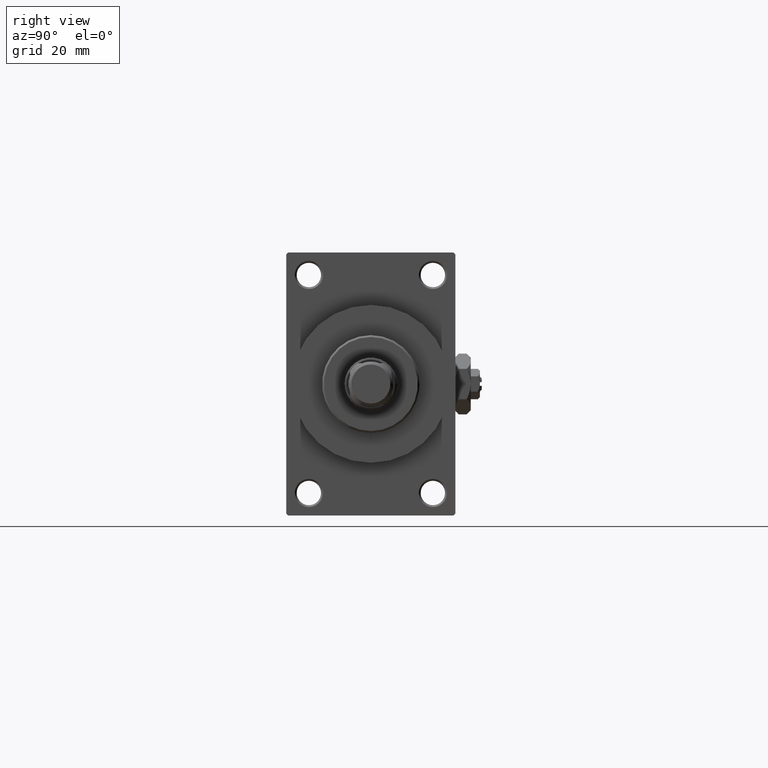
[diagram: clean part render]
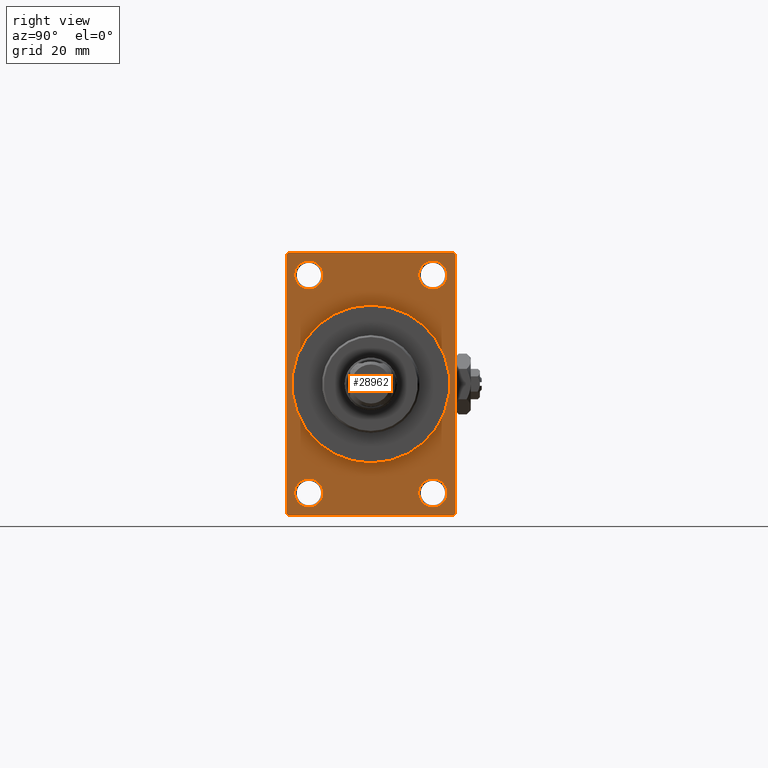
[diagram: same view with one face highlighted and labeled with its STEP entity id]
A machine part, right view. The second image highlights one B-rep face of the part: STEP entity #28962.
In plain terms, the highlighted planar face has unit normal (-1, 0, 0).
Its self-contained STEP definition (entity closure, byte-faithful):
#120 = CARTESIAN_POINT ( 'NONE',  ( 113.0000000000000142, -22.50000000000000355, 35.00000000000000000 ) ) ;
#156 = CIRCLE ( 'NONE', #8189, 3.750000000000076383 ) ;
#503 = EDGE_CURVE ( 'NONE', #49047, #524, #26701, .T. ) ;
#524 = VERTEX_POINT ( 'NONE', #32859 ) ;
#544 = VERTEX_POINT ( 'NONE', #9822 ) ;
#860 = VECTOR ( 'NONE', #10051, 1000.000000000000000 ) ;
#960 = EDGE_CURVE ( 'NONE', #15531, #18504, #10149, .T. ) ;
#1270 = DIRECTION ( 'NONE',  ( -1.000000000000000000, -0.000000000000000000, -0.000000000000000000 ) ) ;
#1417 = CIRCLE ( 'NONE', #33437, 3.750000000000076383 ) ;
#1958 = CARTESIAN_POINT ( 'NONE',  ( 113.0000000000000142, 16.50000000000000000, 29.00000000000000355 ) ) ;
#2892 = DIRECTION ( 'NONE',  ( 0.000000000000000000, 0.000000000000000000, -1.000000000000000000 ) ) ;
#3940 = EDGE_CURVE ( 'NONE', #40614, #14193, #1417, .T. ) ;
#4232 = CARTESIAN_POINT ( 'NONE',  ( 113.0000000000000142, 0.000000000000000000, 21.00000000000000000 ) ) ;
#4236 = DIRECTION ( 'NONE',  ( 1.000000000000000000, 0.000000000000000000, 0.000000000000000000 ) ) ;
#4344 = AXIS2_PLACEMENT_3D ( 'NONE', #38659, #46430, #28119 ) ;
#4478 = CARTESIAN_POINT ( 'NONE',  ( 113.0000000000000142, 0.000000000000000000, 0.000000000000000000 ) ) ;
#4503 = CIRCLE ( 'NONE', #48559, 3.750000000000069278 ) ;
#5061 = CARTESIAN_POINT ( 'NONE',  ( 113.0000000000000142, -21.99999999999997513, -35.00000000000000000 ) ) ;
#5621 = FACE_BOUND ( 'NONE', #34320, .T. ) ;
#5666 = CARTESIAN_POINT ( 'NONE',  ( 113.0000000000000142, 0.000000000000000000, 0.000000000000000000 ) ) ;
#5853 = VECTOR ( 'NONE', #37655, 1000.000000000000000 ) ;
#5872 = CARTESIAN_POINT ( 'NONE',  ( 113.0000000000000142, 0.000000000000000000, 0.000000000000000000 ) ) ;
#6009 = ORIENTED_EDGE ( 'NONE', *, *, #42735, .F. ) ;
#6300 = VECTOR ( 'NONE', #6493, 1000.000000000000114 ) ;
#6372 = DIRECTION ( 'NONE',  ( -0.000000000000000000, 0.000000000000000000, 1.000000000000000000 ) ) ;
#6443 = EDGE_CURVE ( 'NONE', #544, #41608, #22269, .T. ) ;
#6493 = DIRECTION ( 'NONE',  ( -0.000000000000000000, 0.7071067811865474617, 0.7071067811865474617 ) ) ;
#6505 = DIRECTION ( 'NONE',  ( 0.000000000000000000, -0.7071067811865474617, 0.7071067811865474617 ) ) ;
#7076 = CARTESIAN_POINT ( 'NONE',  ( 113.0000000000000142, -16.50000000000000000, 25.24999999999993960 ) ) ;
#7233 = CARTESIAN_POINT ( 'NONE',  ( 113.0000000000000142, 22.49999999999999645, 35.00000000000000000 ) ) ;
#7350 = ORIENTED_EDGE ( 'NONE', *, *, #19491, .T. ) ;
#7553 = EDGE_CURVE ( 'NONE', #8559, #41608, #10252, .T. ) ;
#8189 = AXIS2_PLACEMENT_3D ( 'NONE', #8244, #23524, #19770 ) ;
#8208 = CARTESIAN_POINT ( 'NONE',  ( 113.0000000000000142, 16.50000000000000000, 32.75000000000007816 ) ) ;
#8244 = CARTESIAN_POINT ( 'NONE',  ( 113.0000000000000142, -16.50000000000000000, -28.99999999999999289 ) ) ;
#8559 = VERTEX_POINT ( 'NONE', #9952 ) ;
#8707 = DIRECTION ( 'NONE',  ( -1.000000000000000000, -0.000000000000000000, -0.000000000000000000 ) ) ;
#8819 = CIRCLE ( 'NONE', #39212, 3.750000000000072831 ) ;
#8851 = VERTEX_POINT ( 'NONE', #13919 ) ;
#8899 = CARTESIAN_POINT ( 'NONE',  ( 113.0000000000000142, -16.50000000000000000, -32.75000000000007105 ) ) ;
#8944 = CARTESIAN_POINT ( 'NONE',  ( 113.0000000000000142, -16.50000000000000000, -25.24999999999992184 ) ) ;
#9403 = CARTESIAN_POINT ( 'NONE',  ( 113.0000000000000142, 2.571758278209441661E-15, -21.00000000000000000 ) ) ;
#9420 = EDGE_LOOP ( 'NONE', ( #41730, #11751 ) ) ;
#9634 = FACE_OUTER_BOUND ( 'NONE', #22989, .T. ) ;
#9822 = CARTESIAN_POINT ( 'NONE',  ( 113.0000000000000142, 21.99999999999999645, -35.00000000000000000 ) ) ;
#9929 = ORIENTED_EDGE ( 'NONE', *, *, #3940, .T. ) ;
#9952 = CARTESIAN_POINT ( 'NONE',  ( 113.0000000000000142, 22.49999999999999645, 34.50000000000000000 ) ) ;
#10051 = DIRECTION ( 'NONE',  ( 0.000000000000000000, -1.000000000000000000, 0.000000000000000000 ) ) ;
#10149 = CIRCLE ( 'NONE', #47784, 3.750000000000076383 ) ;
#10231 = VERTEX_POINT ( 'NONE', #7076 ) ;
#10252 = LINE ( 'NONE', #7233, #30338 ) ;
#10732 = EDGE_CURVE ( 'NONE', #19738, #13387, #44858, .T. ) ;
#11556 = CIRCLE ( 'NONE', #4344, 3.750000000000069278 ) ;
#11751 = ORIENTED_EDGE ( 'NONE', *, *, #25648, .T. ) ;
#11969 = CARTESIAN_POINT ( 'NONE',  ( 113.0000000000000142, -16.50000000000000000, -28.99999999999999289 ) ) ;
#12454 = VERTEX_POINT ( 'NONE', #38735 ) ;
#13380 = VECTOR ( 'NONE', #30212, 1000.000000000000000 ) ;
#13387 = VERTEX_POINT ( 'NONE', #42197 ) ;
#13919 = CARTESIAN_POINT ( 'NONE',  ( 113.0000000000000142, -16.50000000000000000, 32.75000000000007816 ) ) ;
#14061 = ORIENTED_EDGE ( 'NONE', *, *, #960, .T. ) ;
#14193 = VERTEX_POINT ( 'NONE', #8899 ) ;
#15531 = VERTEX_POINT ( 'NONE', #16618 ) ;
#16618 = CARTESIAN_POINT ( 'NONE',  ( 113.0000000000000142, 16.50000000000000000, -32.75000000000007105 ) ) ;
#16963 = VERTEX_POINT ( 'NONE', #40646 ) ;
#16991 = LINE ( 'NONE', #29257, #24882 ) ;
#17385 = VERTEX_POINT ( 'NONE', #4232 ) ;
#17413 = FACE_BOUND ( 'NONE', #20206, .T. ) ;
#17434 = EDGE_CURVE ( 'NONE', #14193, #40614, #156, .T. ) ;
#17463 = ORIENTED_EDGE ( 'NONE', *, *, #39777, .T. ) ;
#17751 = DIRECTION ( 'NONE',  ( 0.000000000000000000, 0.7071067811865376918, -0.7071067811865574537 ) ) ;
#18073 = EDGE_LOOP ( 'NONE', ( #14061, #49487 ) ) ;
#18504 = VERTEX_POINT ( 'NONE', #47319 ) ;
#18771 = DIRECTION ( 'NONE',  ( 0.000000000000000000, 0.000000000000000000, -1.000000000000000000 ) ) ;
#19491 = EDGE_CURVE ( 'NONE', #12454, #16963, #34630, .T. ) ;
#19738 = VERTEX_POINT ( 'NONE', #8208 ) ;
#19770 = DIRECTION ( 'NONE',  ( 0.000000000000000000, 0.000000000000000000, 1.000000000000000000 ) ) ;
#19781 = AXIS2_PLACEMENT_3D ( 'NONE', #5872, #47973, #6372 ) ;
#20206 = EDGE_LOOP ( 'NONE', ( #20275, #6009 ) ) ;
#20275 = ORIENTED_EDGE ( 'NONE', *, *, #27743, .F. ) ;
#20511 = DIRECTION ( 'NONE',  ( 0.000000000000000000, 0.000000000000000000, -1.000000000000000000 ) ) ;
#20921 = FACE_BOUND ( 'NONE', #9420, .T. ) ;
#21172 = PLANE ( 'NONE',  #19781 ) ;
#21332 = LINE ( 'NONE', #36598, #860 ) ;
#22269 = LINE ( 'NONE', #40797, #6300 ) ;
#22989 = EDGE_LOOP ( 'NONE', ( #37139, #17463, #43242, #32108, #30753, #44566, #7350, #24741 ) ) ;
#23524 = DIRECTION ( 'NONE',  ( -1.000000000000000000, -0.000000000000000000, -0.000000000000000000 ) ) ;
#23735 = CARTESIAN_POINT ( 'NONE',  ( 113.0000000000000142, 16.50000000000000000, -28.99999999999999289 ) ) ;
#24741 = ORIENTED_EDGE ( 'NONE', *, *, #41444, .T. ) ;
#24882 = VECTOR ( 'NONE', #17751, 999.9999999999998863 ) ;
#25259 = EDGE_LOOP ( 'NONE', ( #33890, #9929 ) ) ;
#25312 = ORIENTED_EDGE ( 'NONE', *, *, #10732, .T. ) ;
#25648 = EDGE_CURVE ( 'NONE', #8851, #10231, #11556, .T. ) ;
#26115 = CIRCLE ( 'NONE', #45330, 21.00000000000000000 ) ;
#26530 = AXIS2_PLACEMENT_3D ( 'NONE', #5666, #37226, #2892 ) ;
#26701 = LINE ( 'NONE', #120, #13380 ) ;
#27243 = AXIS2_PLACEMENT_3D ( 'NONE', #38202, #1270, #45475 ) ;
#27321 = EDGE_CURVE ( 'NONE', #10231, #8851, #4503, .T. ) ;
#27337 = CIRCLE ( 'NONE', #26530, 21.00000000000000000 ) ;
#27743 = EDGE_CURVE ( 'NONE', #17385, #45240, #26115, .T. ) ;
#27854 = CARTESIAN_POINT ( 'NONE',  ( 113.0000000000000142, -22.50000000000000355, 34.50000000000000000 ) ) ;
#28119 = DIRECTION ( 'NONE',  ( 0.000000000000000000, 0.000000000000000000, 1.000000000000000000 ) ) ;
#28702 = EDGE_CURVE ( 'NONE', #8559, #12454, #33053, .T. ) ;
#28925 = VECTOR ( 'NONE', #43131, 1000.000000000000114 ) ;
#28962 = ADVANCED_FACE ( 'NONE', ( #20921, #32926, #35930, #5621, #17413, #9634 ), #21172, .F. ) ;
#29257 = CARTESIAN_POINT ( 'NONE',  ( 113.0000000000000142, -21.99999999999998934, -35.00000000000000000 ) ) ;
#29693 = CARTESIAN_POINT ( 'NONE',  ( 113.0000000000000142, -16.50000000000000000, 29.00000000000000711 ) ) ;
#30212 = DIRECTION ( 'NONE',  ( 0.000000000000000000, 0.000000000000000000, -1.000000000000000000 ) ) ;
#30338 = VECTOR ( 'NONE', #18771, 1000.000000000000000 ) ;
#30532 = ORIENTED_EDGE ( 'NONE', *, *, #38947, .T. ) ;
#30534 = DIRECTION ( 'NONE',  ( 0.000000000000000000, 0.000000000000000000, 1.000000000000000000 ) ) ;
#30753 = ORIENTED_EDGE ( 'NONE', *, *, #7553, .F. ) ;
#32020 = CIRCLE ( 'NONE', #27243, 3.750000000000076383 ) ;
#32108 = ORIENTED_EDGE ( 'NONE', *, *, #6443, .T. ) ;
#32859 = CARTESIAN_POINT ( 'NONE',  ( 113.0000000000000142, -22.50000000000000355, -34.49999999999997158 ) ) ;
#32926 = FACE_BOUND ( 'NONE', #25259, .T. ) ;
#33053 = LINE ( 'NONE', #48353, #40583 ) ;
#33437 = AXIS2_PLACEMENT_3D ( 'NONE', #11969, #42525, #43005 ) ;
#33654 = AXIS2_PLACEMENT_3D ( 'NONE', #33940, #48997, #38191 ) ;
#33890 = ORIENTED_EDGE ( 'NONE', *, *, #17434, .T. ) ;
#33891 = CARTESIAN_POINT ( 'NONE',  ( 113.0000000000000142, 22.49999999999999645, 35.00000000000000000 ) ) ;
#33940 = CARTESIAN_POINT ( 'NONE',  ( 113.0000000000000142, 16.50000000000000000, 29.00000000000000355 ) ) ;
#34320 = EDGE_LOOP ( 'NONE', ( #30532, #25312 ) ) ;
#34630 = LINE ( 'NONE', #33891, #5853 ) ;
#35930 = FACE_BOUND ( 'NONE', #18073, .T. ) ;
#36288 = DIRECTION ( 'NONE',  ( -1.000000000000000000, -0.000000000000000000, -0.000000000000000000 ) ) ;
#36598 = CARTESIAN_POINT ( 'NONE',  ( 113.0000000000000142, 22.49999999999999645, -35.00000000000000000 ) ) ;
#36617 = VERTEX_POINT ( 'NONE', #5061 ) ;
#36959 = DIRECTION ( 'NONE',  ( -1.000000000000000000, -0.000000000000000000, -0.000000000000000000 ) ) ;
#37139 = ORIENTED_EDGE ( 'NONE', *, *, #503, .T. ) ;
#37226 = DIRECTION ( 'NONE',  ( 1.000000000000000000, 0.000000000000000000, 0.000000000000000000 ) ) ;
#37655 = DIRECTION ( 'NONE',  ( 0.000000000000000000, -1.000000000000000000, 0.000000000000000000 ) ) ;
#38191 = DIRECTION ( 'NONE',  ( 0.000000000000000000, 0.000000000000000000, 1.000000000000000000 ) ) ;
#38202 = CARTESIAN_POINT ( 'NONE',  ( 113.0000000000000142, 16.50000000000000000, -28.99999999999999289 ) ) ;
#38659 = CARTESIAN_POINT ( 'NONE',  ( 113.0000000000000142, -16.50000000000000000, 29.00000000000000711 ) ) ;
#38735 = CARTESIAN_POINT ( 'NONE',  ( 113.0000000000000142, 21.99999999999999645, 35.00000000000000000 ) ) ;
#38947 = EDGE_CURVE ( 'NONE', #13387, #19738, #8819, .T. ) ;
#39212 = AXIS2_PLACEMENT_3D ( 'NONE', #1958, #36288, #41529 ) ;
#39423 = EDGE_CURVE ( 'NONE', #18504, #15531, #32020, .T. ) ;
#39652 = EDGE_CURVE ( 'NONE', #544, #36617, #21332, .T. ) ;
#39777 = EDGE_CURVE ( 'NONE', #524, #36617, #16991, .T. ) ;
#40583 = VECTOR ( 'NONE', #6505, 1000.000000000000114 ) ;
#40614 = VERTEX_POINT ( 'NONE', #8944 ) ;
#40646 = CARTESIAN_POINT ( 'NONE',  ( 113.0000000000000142, -21.99999999999998934, 35.00000000000000000 ) ) ;
#40757 = CARTESIAN_POINT ( 'NONE',  ( 113.0000000000000142, -22.50000000000000355, 34.50000000000000000 ) ) ;
#40797 = CARTESIAN_POINT ( 'NONE',  ( 113.0000000000000142, 22.49999999999999645, -34.50000000000000000 ) ) ;
#41444 = EDGE_CURVE ( 'NONE', #16963, #49047, #42897, .T. ) ;
#41529 = DIRECTION ( 'NONE',  ( 0.000000000000000000, 0.000000000000000000, 1.000000000000000000 ) ) ;
#41608 = VERTEX_POINT ( 'NONE', #43270 ) ;
#41730 = ORIENTED_EDGE ( 'NONE', *, *, #27321, .T. ) ;
#42197 = CARTESIAN_POINT ( 'NONE',  ( 113.0000000000000142, 16.50000000000000000, 25.24999999999993250 ) ) ;
#42525 = DIRECTION ( 'NONE',  ( -1.000000000000000000, -0.000000000000000000, -0.000000000000000000 ) ) ;
#42735 = EDGE_CURVE ( 'NONE', #45240, #17385, #27337, .T. ) ;
#42897 = LINE ( 'NONE', #27854, #28925 ) ;
#43005 = DIRECTION ( 'NONE',  ( 0.000000000000000000, 0.000000000000000000, 1.000000000000000000 ) ) ;
#43131 = DIRECTION ( 'NONE',  ( -0.000000000000000000, -0.7071067811865474617, -0.7071067811865474617 ) ) ;
#43242 = ORIENTED_EDGE ( 'NONE', *, *, #39652, .F. ) ;
#43270 = CARTESIAN_POINT ( 'NONE',  ( 113.0000000000000142, 22.49999999999999645, -34.50000000000000000 ) ) ;
#44478 = DIRECTION ( 'NONE',  ( 0.000000000000000000, 0.000000000000000000, 1.000000000000000000 ) ) ;
#44566 = ORIENTED_EDGE ( 'NONE', *, *, #28702, .T. ) ;
#44858 = CIRCLE ( 'NONE', #33654, 3.750000000000072831 ) ;
#45240 = VERTEX_POINT ( 'NONE', #9403 ) ;
#45330 = AXIS2_PLACEMENT_3D ( 'NONE', #4478, #4236, #20511 ) ;
#45475 = DIRECTION ( 'NONE',  ( 0.000000000000000000, 0.000000000000000000, 1.000000000000000000 ) ) ;
#46430 = DIRECTION ( 'NONE',  ( -1.000000000000000000, -0.000000000000000000, -0.000000000000000000 ) ) ;
#47319 = CARTESIAN_POINT ( 'NONE',  ( 113.0000000000000142, 16.50000000000000000, -25.24999999999992184 ) ) ;
#47784 = AXIS2_PLACEMENT_3D ( 'NONE', #23735, #8707, #30534 ) ;
#47973 = DIRECTION ( 'NONE',  ( -1.000000000000000000, 0.000000000000000000, -0.000000000000000000 ) ) ;
#48353 = CARTESIAN_POINT ( 'NONE',  ( 113.0000000000000142, 21.99999999999999645, 35.00000000000000000 ) ) ;
#48559 = AXIS2_PLACEMENT_3D ( 'NONE', #29693, #36959, #44478 ) ;
#48997 = DIRECTION ( 'NONE',  ( -1.000000000000000000, -0.000000000000000000, -0.000000000000000000 ) ) ;
#49047 = VERTEX_POINT ( 'NONE', #40757 ) ;
#49487 = ORIENTED_EDGE ( 'NONE', *, *, #39423, .T. ) ;